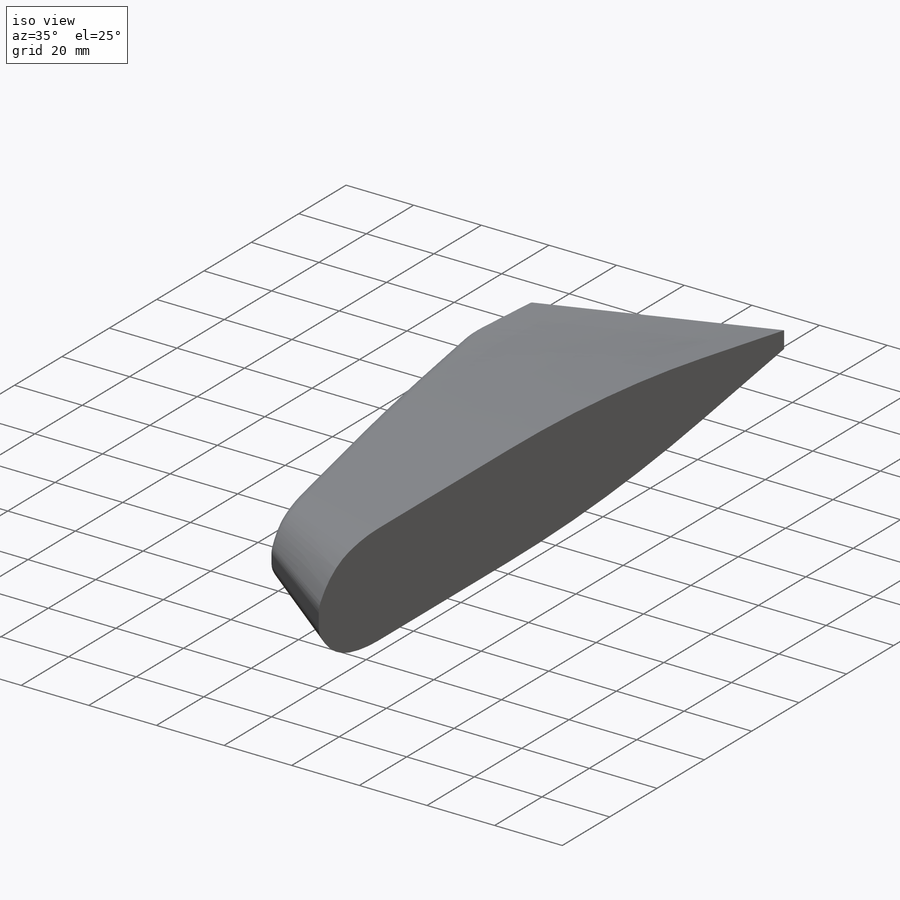
[diagram: iso view]
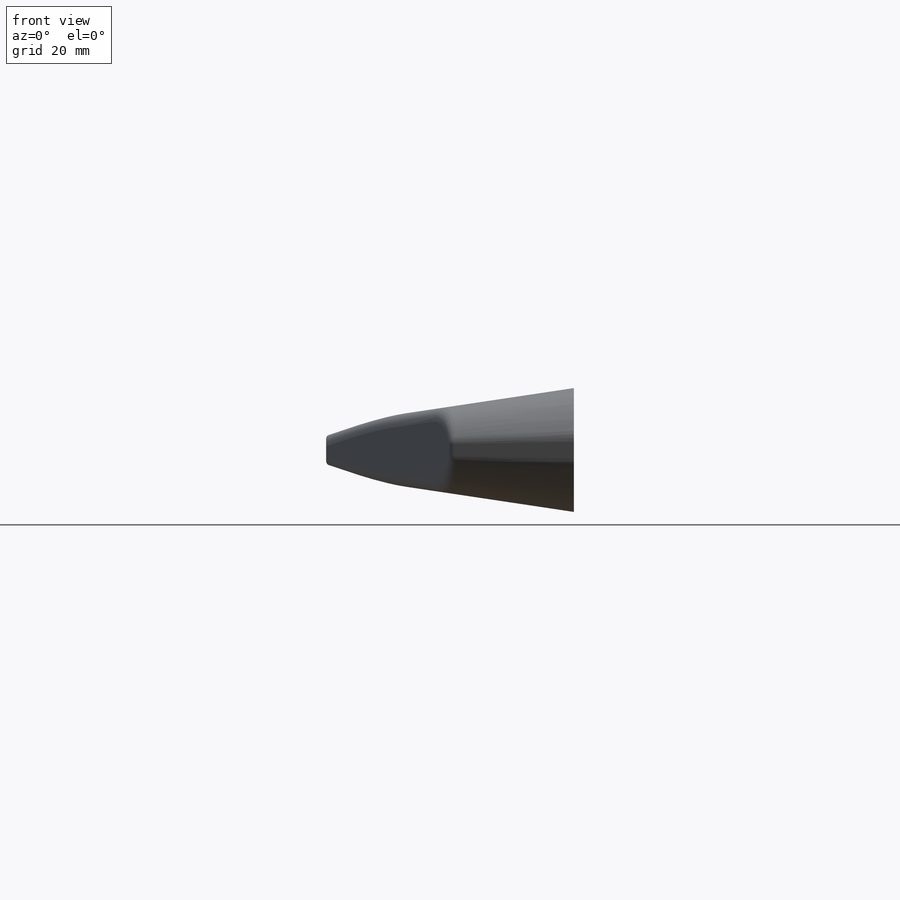
[diagram: front view]
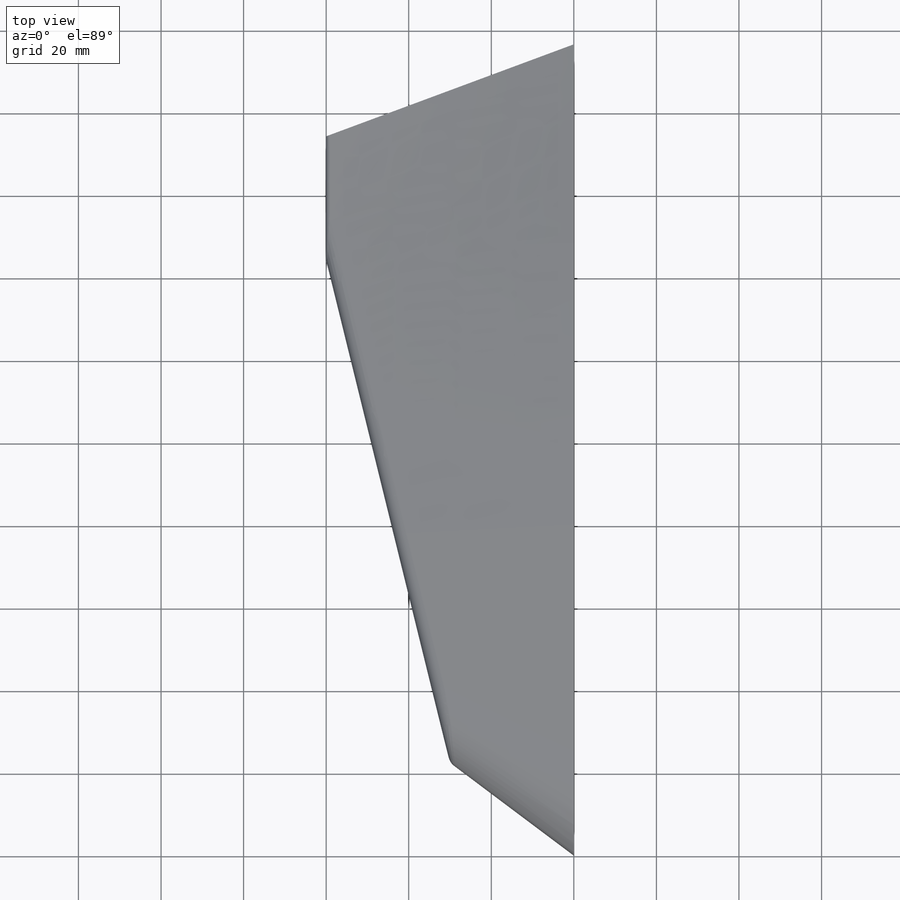
[diagram: top view]
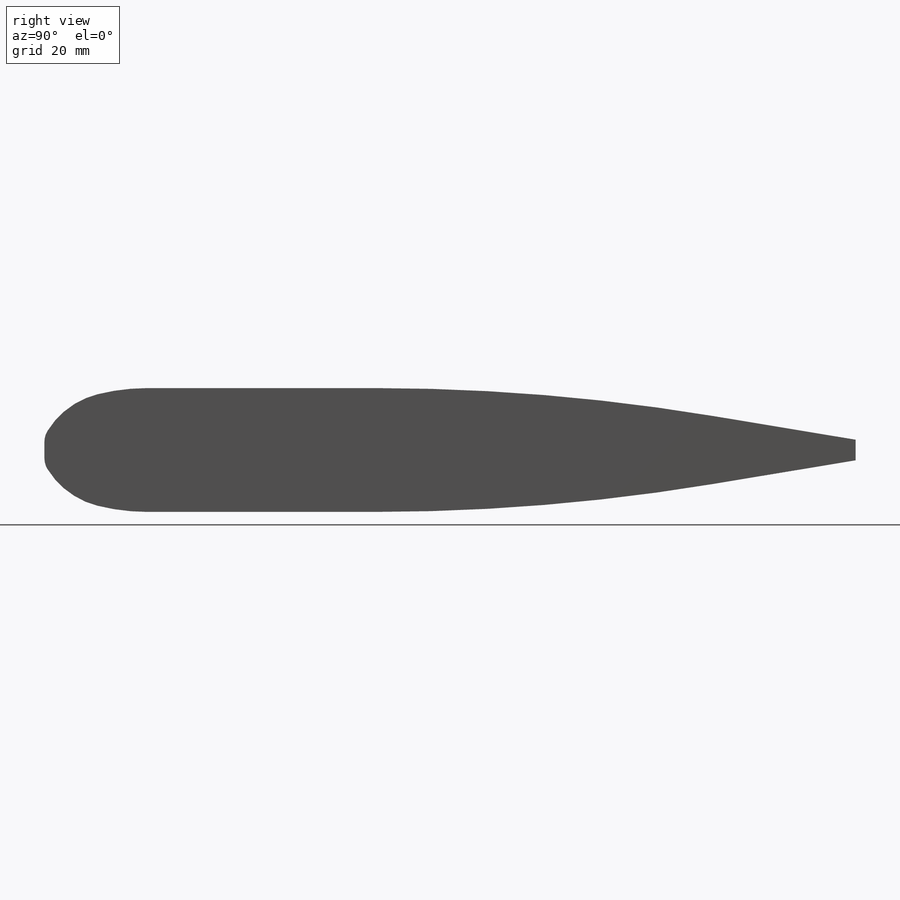
[diagram: right view]
SOLIDWORKS PART (.sldprt)
format: sldprt  version: not decoded by parser v0  size: 1,192,448 bytes
history: native  units: mm
features: sketch x16, plane x8, fillet x2, material x1, cut_extrude x1 (+12 scaffold rows collapsed)
feature tree (40):
  scaffold x12  (default folders/planes/origin — collapsed)
  material  "Material <not specified>"
  sketch  "Sketch1"  dims[c1.D5=9.0mm c1.D6=56.0mm c1.D7=60.0mm c1.D11=5.0mm c1.D12=20.0mm c1.D13=50.0mm c2.D6=30.0mm c2.D1=55.0mm c2.D2=4.0mm c2.D3=42.0mm c2.D4=20.0mm c2.D8=11.0mm c2.D9=30.0mm c2.D10=35.0mm c3.D8=4.0mm c3.D14=3.0mm c3.D15=6.0mm c3.D16=3.0mm c3.D17=6.0mm c3.D18=11.0mm c3.D19=5.0mm c3.D20=7.0mm c3.D21=3.0mm c3.D22=5.0mm c4.D18=10.0mm c4.D23=11.0mm]
  sketch  "Sketch2"  dims[c1.D2=500.0mm c1.D6=3.0mm c1.D1=45.0mm c1.D3=5.0mm c1.D4=161.5mm c1.D5=75.0mm c1.D7=17.0mm c1.D8=15.0mm c2.D7=32.0mm]
  plane  "Plane1"  Offset=100mm
  sketch  "Sketch4"
  plane  "Plane2"
  sketch  "Sketch5"
  plane  "Plane3"
  sketch  "Sketch6"
  plane  "Plane4"
  sketch  "Sketch7"
  plane  "Plane5"
  sketch  "Sketch8"
  plane  "Plane6"
  sketch  "Sketch9"
  sketch  "Sketch10"  dims[c1.D1=~121.511517mm c2.D1=69.62deg]
  plane  "Plane8"
  sketch  "Sketch12"
  plane  "Plane7"  Offset=60mm
  sketch  "Sketch11"  dims[D1=30.0mm]
  sketch  "Sketch17"  dims[D1=30.0mm D2=30.0mm D3=35.0mm D4=4.0mm D5=3.0mm]
  cut_extrude  "Cut-Extrude1"  [1 undecoded]
  sketch  "Sketch13"  dims[D1=17.0mm]
  sketch  "Sketch14"
  fillet  "Fillet1"  Radius=3.5mm
  sketch  "Sketch15"
  sketch  "Sketch16"  dims[D1=50.0mm]
  fillet  "Fillet2"  Radius=1mm
decode coverage: 9 of 19 modeling features carry decoded parameters
note: ~ marks probable driven/reference dimensions
note: 1 parameter value undecoded
note: suppression state not decoded; provenance and decode notes live in map.json
